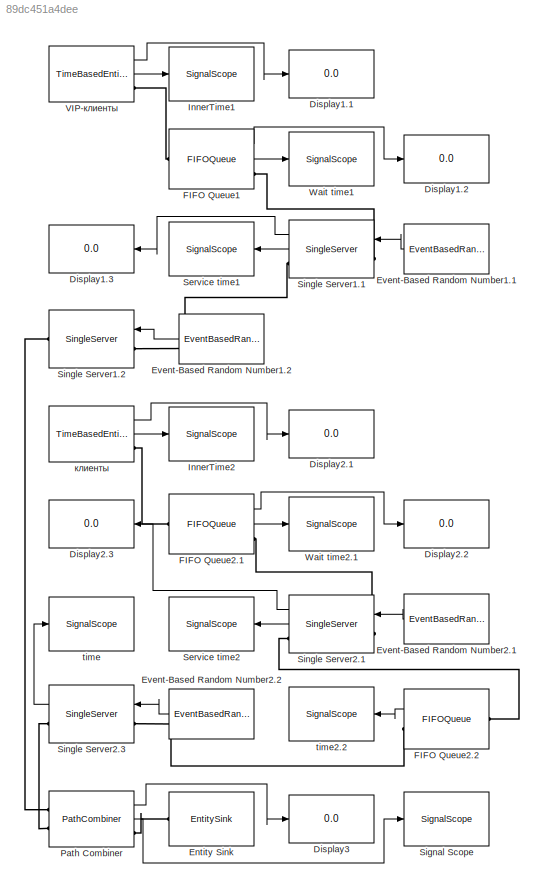
MODEL slx_89dc451a4dee
KIND model
BLOCK [Display] Display1.1
  Decimation = 1
  Lockdown = off
  Ports = [1]
BLOCK [Display] Display1.2
  Decimation = 1
  Lockdown = off
  Ports = [1]
BLOCK [Display] Display1.3
  Decimation = 1
  Lockdown = off
  Ports = [1]
BLOCK [Display] Display2.1
  Decimation = 1
  Lockdown = off
  Ports = [1]
BLOCK [Display] Display2.2
  Decimation = 1
  Lockdown = off
  Ports = [1]
BLOCK [Display] Display2.3
  Decimation = 1
  Lockdown = off
  Ports = [1]
BLOCK [Display] Display3
  Decimation = 1
  Lockdown = off
  Ports = [1]
BLOCK [EntitySink] Entity Sink
  Ports = [0, 0, 0, 0, 0, 1]
BLOCK [EventBasedRandomNumber] Event-Based Random Number1.1
  Distribution = Uniform
  OutputPortMap = o0
  Ports = [0, 1]
  Seed = 12
  maxUnif = 10
  meanExp = 15
  minUnif = 8
BLOCK [EventBasedRandomNumber] Event-Based Random Number1.2
  OutputPortMap = o0
  Ports = [0, 1]
  Seed = 12
  maxUnif = 3
  meanExp = 5
  minUnif = 3
BLOCK [EventBasedRandomNumber] Event-Based Random Number2.1
  Distribution = Uniform
  OutputPortMap = o0
  Ports = [0, 1]
  Seed = 12
  maxUnif = 8
  meanExp = 15
  minUnif = 5
BLOCK [EventBasedRandomNumber] Event-Based Random Number2.2
  OutputPortMap = o0
  Ports = [0, 1]
  Seed = 12
  maxUnif = 3
  meanExp = 5
  minUnif = 3
BLOCK [FIFOQueue] FIFO Queue1
  Capacity = 20
  OutputPortMap = o0,o2
  Ports = [0, 2, 0, 0, 0, 1, 1]
  StatAverageWait = on
  StatNumberDeparted = on
BLOCK [FIFOQueue] FIFO Queue2.1
  Capacity = 20
  OutputPortMap = o0,o2
  Ports = [0, 2, 0, 0, 0, 1, 1]
  StatAverageWait = on
  StatNumberDeparted = on
BLOCK [FIFOQueue] FIFO Queue2.2
  Capacity = 20
  OutputPortMap = o2
  Ports = [0, 1, 0, 0, 0, 1, 1]
  StatAverageWait = on
BLOCK [SignalScope] InnerTime1
  CopyFcn = des.scope.CallbackSupport('seCopyFcn',gcbh)
  DeleteFcn = des.scope.CallbackSupport('seDeleteFcn',gcbh)
  InputPortMap = u0
  LoadFcn = des.scope.CallbackSupport('seLoadFcn',gcbh)
  NameChangeFcn = des.scope.CallbackSupport('seNameChangeFcn',gcbh)
  OpenFcn = des.scope.CallbackSupport('seOpenFcn',gcbh)
  Ports = [1]
  PreSaveFcn = des.scope.CallbackSupport('sePreSaveFcn',gcbh)
  ShowCountPlotted = on
  StartFcn = des.scope.CallbackSupport('seStartFcn',gcbh)
  StopFcn = des.scope.CallbackSupport('seStopFcn',gcbh)
BLOCK [SignalScope] InnerTime2
  CopyFcn = des.scope.CallbackSupport('seCopyFcn',gcbh)
  DeleteFcn = des.scope.CallbackSupport('seDeleteFcn',gcbh)
  InputPortMap = u0
  LoadFcn = des.scope.CallbackSupport('seLoadFcn',gcbh)
  NameChangeFcn = des.scope.CallbackSupport('seNameChangeFcn',gcbh)
  OpenFcn = des.scope.CallbackSupport('seOpenFcn',gcbh)
  Ports = [1]
  PreSaveFcn = des.scope.CallbackSupport('sePreSaveFcn',gcbh)
  ShowCountPlotted = on
  StartFcn = des.scope.CallbackSupport('seStartFcn',gcbh)
  StopFcn = des.scope.CallbackSupport('seStopFcn',gcbh)
BLOCK [PathCombiner] Path Combiner
  NumberInputPorts = 2
  OutputPortMap = o0,o1
  Ports = [0, 2, 0, 0, 0, 2, 1]
  StatLastArrivalPort = on
  StatNumberDeparted = on
BLOCK [SignalScope] Service time1
  CopyFcn = des.scope.CallbackSupport('seCopyFcn',gcbh)
  DeleteFcn = des.scope.CallbackSupport('seDeleteFcn',gcbh)
  InputPortMap = u0
  LoadFcn = des.scope.CallbackSupport('seLoadFcn',gcbh)
  NameChangeFcn = des.scope.CallbackSupport('seNameChangeFcn',gcbh)
  OpenFcn = des.scope.CallbackSupport('seOpenFcn',gcbh)
  Ports = [1]
  PreSaveFcn = des.scope.CallbackSupport('sePreSaveFcn',gcbh)
  ShowCountPlotted = on
  StartFcn = des.scope.CallbackSupport('seStartFcn',gcbh)
  StopFcn = des.scope.CallbackSupport('seStopFcn',gcbh)
BLOCK [SignalScope] Service time2
  CopyFcn = des.scope.CallbackSupport('seCopyFcn',gcbh)
  DeleteFcn = des.scope.CallbackSupport('seDeleteFcn',gcbh)
  InputPortMap = u0
  LoadFcn = des.scope.CallbackSupport('seLoadFcn',gcbh)
  NameChangeFcn = des.scope.CallbackSupport('seNameChangeFcn',gcbh)
  OpenFcn = des.scope.CallbackSupport('seOpenFcn',gcbh)
  Ports = [1]
  PreSaveFcn = des.scope.CallbackSupport('sePreSaveFcn',gcbh)
  ShowCountPlotted = on
  StartFcn = des.scope.CallbackSupport('seStartFcn',gcbh)
  StopFcn = des.scope.CallbackSupport('seStopFcn',gcbh)
BLOCK [SignalScope] Signal Scope
  CopyFcn = des.scope.CallbackSupport('seCopyFcn',gcbh)
  DeleteFcn = des.scope.CallbackSupport('seDeleteFcn',gcbh)
  InputPortMap = u0
  LoadFcn = des.scope.CallbackSupport('seLoadFcn',gcbh)
  NameChangeFcn = des.scope.CallbackSupport('seNameChangeFcn',gcbh)
  OpenFcn = des.scope.CallbackSupport('seOpenFcn',gcbh)
  Ports = [1]
  PreSaveFcn = des.scope.CallbackSupport('sePreSaveFcn',gcbh)
  ShowCountPlotted = on
  StartFcn = des.scope.CallbackSupport('seStartFcn',gcbh)
  StopFcn = des.scope.CallbackSupport('seStopFcn',gcbh)
BLOCK [SingleServer] Single Server1.1
  AttributeName = servtime
  InputPortMap = u0
  OutputPortMap = o0,o4
  Ports = [1, 2, 0, 0, 0, 1, 1]
  ServiceTimeFrom = Signal port t
  StatAverageWait = on
  StatNumberDeparted = on
BLOCK [SingleServer] Single Server1.2
  AttributeName = servtime
  InputPortMap = u0
  Ports = [1, 0, 0, 0, 0, 1, 1]
  ServiceTimeFrom = Signal port t
BLOCK [SingleServer] Single Server2.1
  AttributeName = servtime
  InputPortMap = u0
  OutputPortMap = o0,o4
  Ports = [1, 2, 0, 0, 0, 1, 1]
  ServiceTimeFrom = Signal port t
  StatAverageWait = on
  StatNumberDeparted = on
BLOCK [SingleServer] Single Server2.3
  AttributeName = servtime
  InputPortMap = u0
  OutputPortMap = o4
  Ports = [1, 1, 0, 0, 0, 1, 1]
  ServiceTimeFrom = Signal port t
  StatAverageWait = on
BLOCK [TimeBasedEntityGenerator] VIP-клиенты
  Distribution = Exponential
  InitialSeed = 12
  Mean = 20
  OutputPortMap = o0,o2
  Ports = [0, 2, 0, 0, 0, 0, 1]
  StatAverageIntergenerationTime = on
  StatNumberDeparted = on
BLOCK [SignalScope] Wait time1
  CopyFcn = des.scope.CallbackSupport('seCopyFcn',gcbh)
  DeleteFcn = des.scope.CallbackSupport('seDeleteFcn',gcbh)
  InputPortMap = u0
  LoadFcn = des.scope.CallbackSupport('seLoadFcn',gcbh)
  NameChangeFcn = des.scope.CallbackSupport('seNameChangeFcn',gcbh)
  OpenFcn = des.scope.CallbackSupport('seOpenFcn',gcbh)
  Ports = [1]
  PreSaveFcn = des.scope.CallbackSupport('sePreSaveFcn',gcbh)
  ShowCountPlotted = on
  StartFcn = des.scope.CallbackSupport('seStartFcn',gcbh)
  StopFcn = des.scope.CallbackSupport('seStopFcn',gcbh)
BLOCK [SignalScope] Wait time2.1
  CopyFcn = des.scope.CallbackSupport('seCopyFcn',gcbh)
  DeleteFcn = des.scope.CallbackSupport('seDeleteFcn',gcbh)
  InputPortMap = u0
  LoadFcn = des.scope.CallbackSupport('seLoadFcn',gcbh)
  NameChangeFcn = des.scope.CallbackSupport('seNameChangeFcn',gcbh)
  OpenFcn = des.scope.CallbackSupport('seOpenFcn',gcbh)
  Ports = [1]
  PreSaveFcn = des.scope.CallbackSupport('sePreSaveFcn',gcbh)
  ShowCountPlotted = on
  StartFcn = des.scope.CallbackSupport('seStartFcn',gcbh)
  StopFcn = des.scope.CallbackSupport('seStopFcn',gcbh)
BLOCK [SignalScope] time
  CopyFcn = des.scope.CallbackSupport('seCopyFcn',gcbh)
  DeleteFcn = des.scope.CallbackSupport('seDeleteFcn',gcbh)
  InputPortMap = u0
  LoadFcn = des.scope.CallbackSupport('seLoadFcn',gcbh)
  NameChangeFcn = des.scope.CallbackSupport('seNameChangeFcn',gcbh)
  OpenFcn = des.scope.CallbackSupport('seOpenFcn',gcbh)
  Ports = [1]
  PreSaveFcn = des.scope.CallbackSupport('sePreSaveFcn',gcbh)
  ShowCountPlotted = on
  StartFcn = des.scope.CallbackSupport('seStartFcn',gcbh)
  StopFcn = des.scope.CallbackSupport('seStopFcn',gcbh)
BLOCK [SignalScope] time2.2
  CopyFcn = des.scope.CallbackSupport('seCopyFcn',gcbh)
  DeleteFcn = des.scope.CallbackSupport('seDeleteFcn',gcbh)
  InputPortMap = u0
  LoadFcn = des.scope.CallbackSupport('seLoadFcn',gcbh)
  NameChangeFcn = des.scope.CallbackSupport('seNameChangeFcn',gcbh)
  OpenFcn = des.scope.CallbackSupport('seOpenFcn',gcbh)
  Ports = [1]
  PreSaveFcn = des.scope.CallbackSupport('sePreSaveFcn',gcbh)
  ShowCountPlotted = on
  StartFcn = des.scope.CallbackSupport('seStartFcn',gcbh)
  StopFcn = des.scope.CallbackSupport('seStopFcn',gcbh)
BLOCK [TimeBasedEntityGenerator] клиенты
  Distribution = Exponential
  InitialSeed = 12
  Mean = 10
  OutputPortMap = o0,o2
  Ports = [0, 2, 0, 0, 0, 0, 1]
  StatAverageIntergenerationTime = on
  StatNumberDeparted = on
LINE Event-Based Random Number1.1:1 -> Single Server1.1:1
LINE Event-Based Random Number1.2:1 -> Single Server1.2:1
LINE Event-Based Random Number2.1:1 -> Single Server2.1:1
LINE Event-Based Random Number2.2:1 -> Single Server2.3:1
LINE FIFO Queue1:1 -> Display1.2:1
LINE FIFO Queue1:2 -> Wait time1:1
LINE FIFO Queue2.1:1 -> Display2.2:1
LINE FIFO Queue2.1:2 -> Wait time2.1:1
LINE FIFO Queue2.2:1 -> time2.2:1
LINE Path Combiner:1 -> Display3:1
LINE Path Combiner:2 -> Signal Scope:1
LINE Single Server1.1:1 -> Display1.3:1
LINE Single Server1.1:2 -> Service time1:1
LINE Single Server2.1:1 -> Display2.3:1
LINE Single Server2.1:2 -> Service time2:1
LINE Single Server2.3:1 -> time:1
LINE VIP-клиенты:1 -> Display1.1:1
LINE VIP-клиенты:2 -> InnerTime1:1
LINE клиенты:1 -> Display2.1:1
LINE клиенты:2 -> InnerTime2:1
PLINE Entity Sink:LConn1 -- Path Combiner:RConn1
PLINE FIFO Queue1:LConn1 -- VIP-клиенты:RConn1
PLINE FIFO Queue1:RConn1 -- Single Server1.1:LConn1
PLINE FIFO Queue2.1:LConn1 -- клиенты:RConn1
PLINE FIFO Queue2.1:RConn1 -- Single Server2.1:LConn1
PLINE FIFO Queue2.2:LConn1 -- Single Server2.1:RConn1
PLINE FIFO Queue2.2:RConn1 -- Single Server2.3:LConn1
PLINE Path Combiner:LConn1 -- Single Server1.2:RConn1
PLINE Path Combiner:LConn2 -- Single Server2.3:RConn1
PLINE Single Server1.1:RConn1 -- Single Server1.2:LConn1
